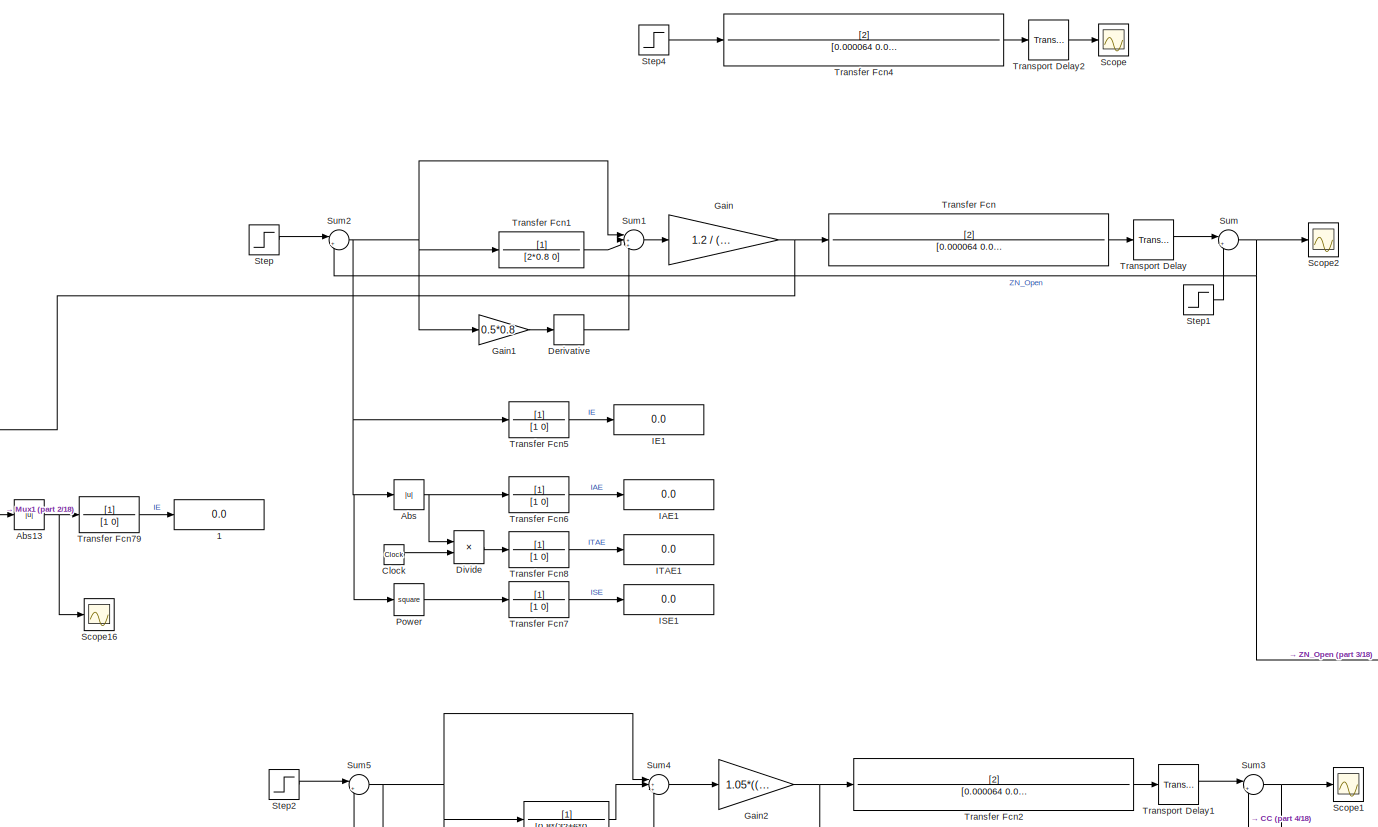
[diagram: root canvas - part 1/18, top center region]
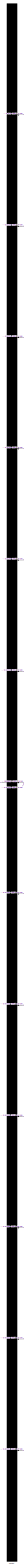
[diagram: root canvas - part 2/18, left side, full height]
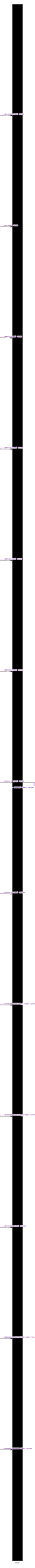
[diagram: root canvas - part 3/18, right side, full height]
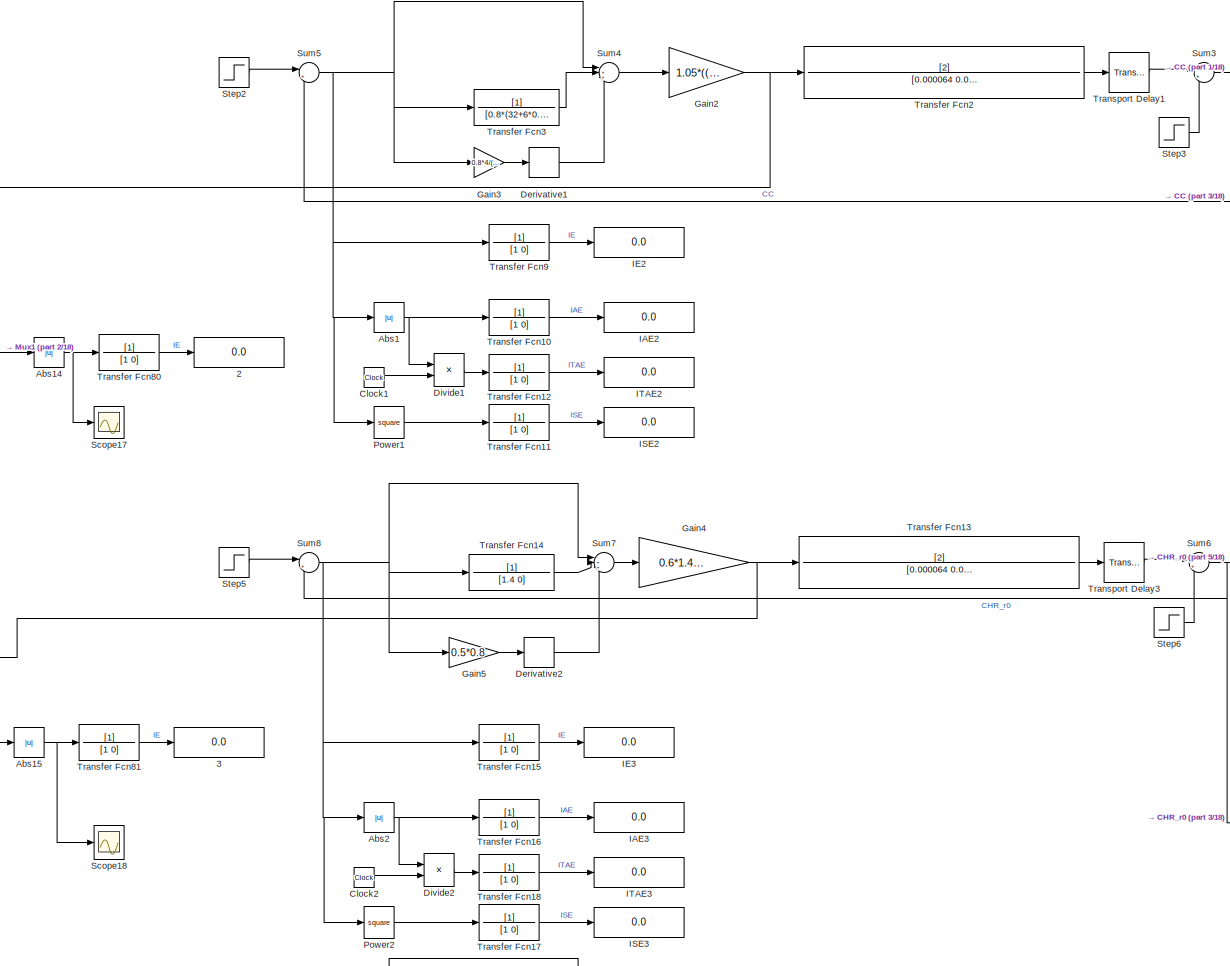
[diagram: root canvas - part 4/18, top center region]
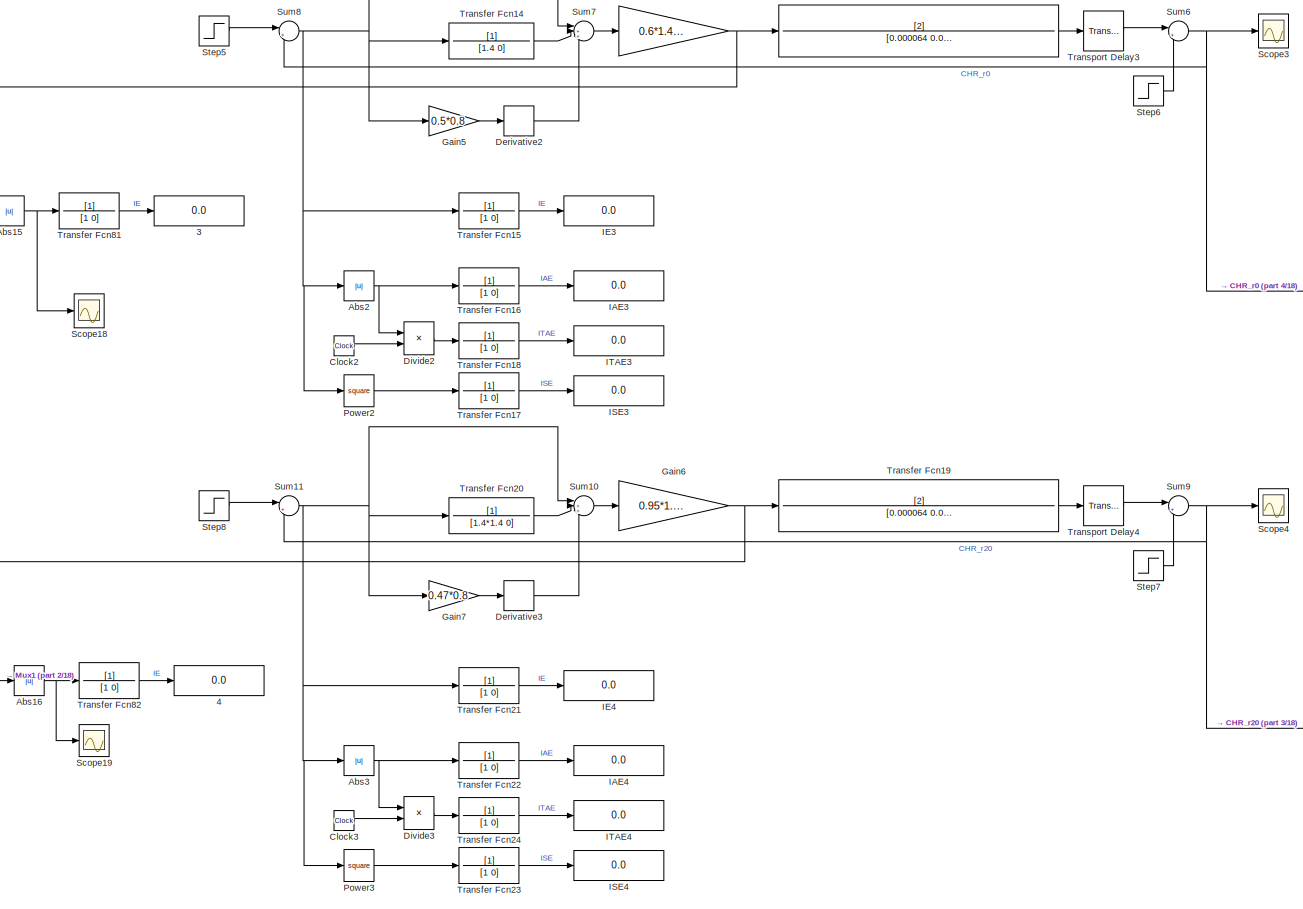
[diagram: root canvas - part 5/18, top center region]
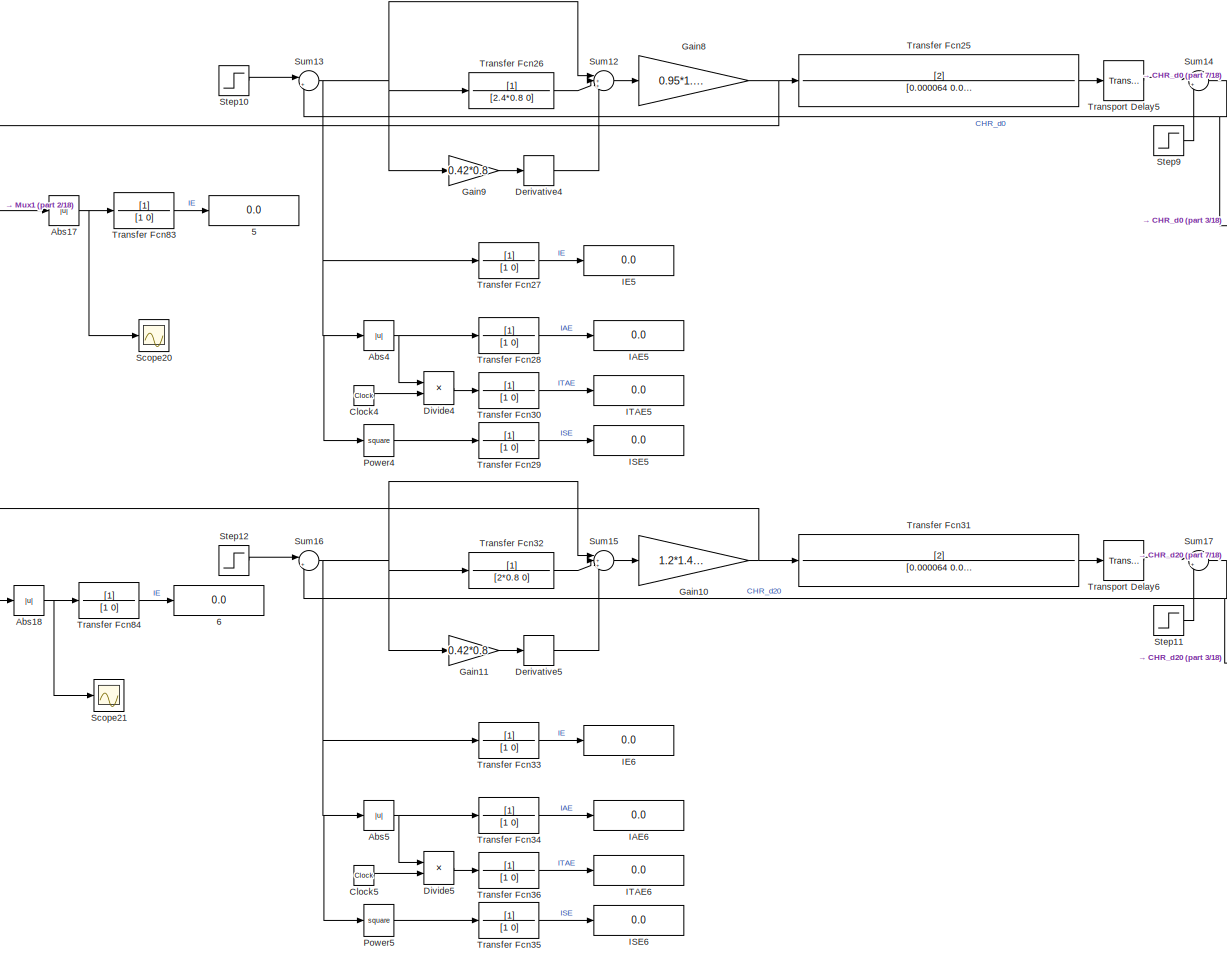
[diagram: root canvas - part 6/18, central region]
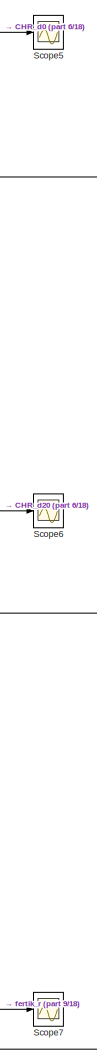
[diagram: root canvas - part 7/18, middle right region]
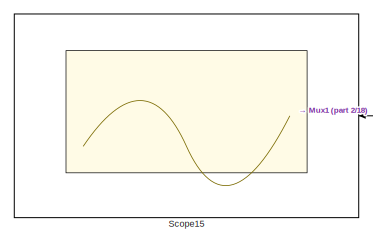
[diagram: root canvas - part 8/18, middle left region]
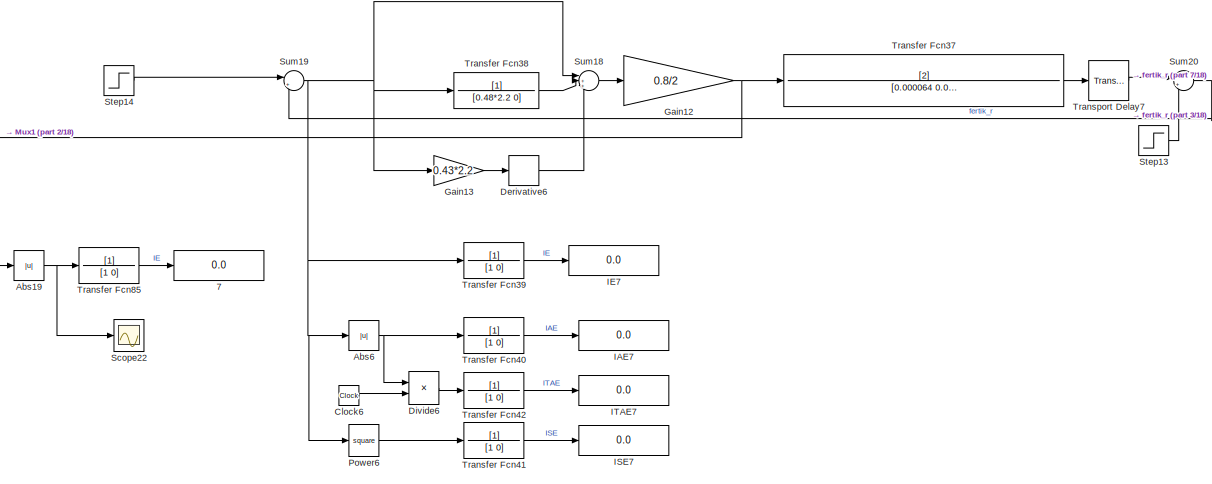
[diagram: root canvas - part 9/18, central region]
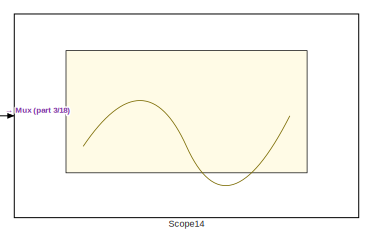
[diagram: root canvas - part 10/18, middle right region]
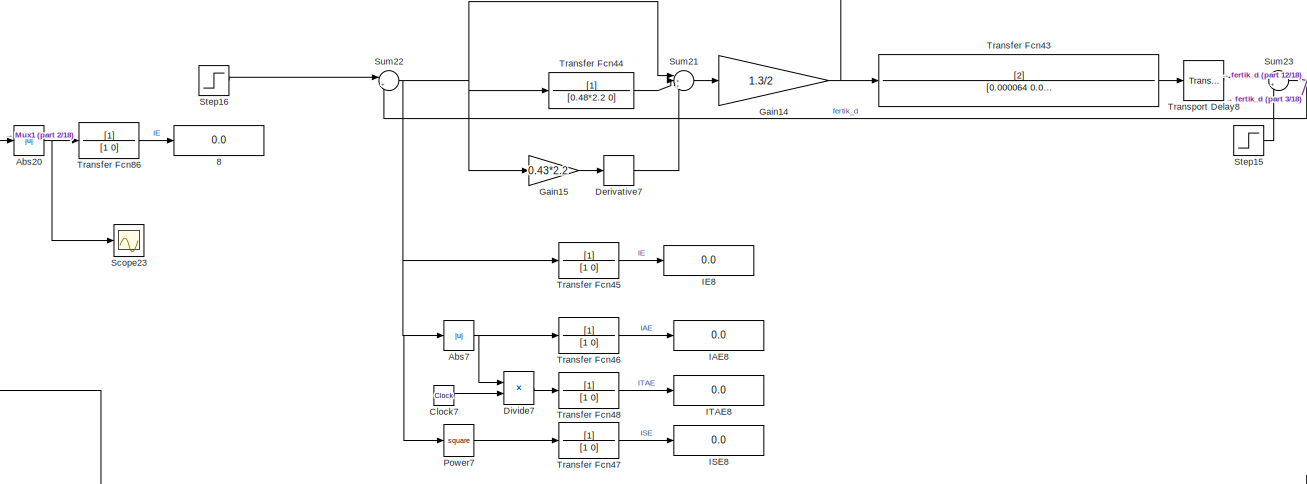
[diagram: root canvas - part 11/18, central region]
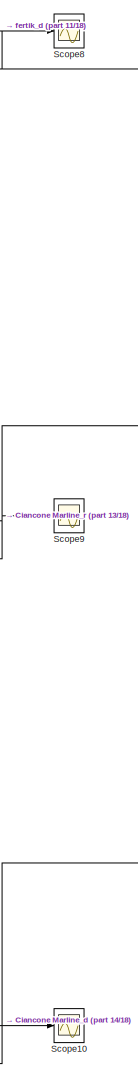
[diagram: root canvas - part 12/18, middle right region]
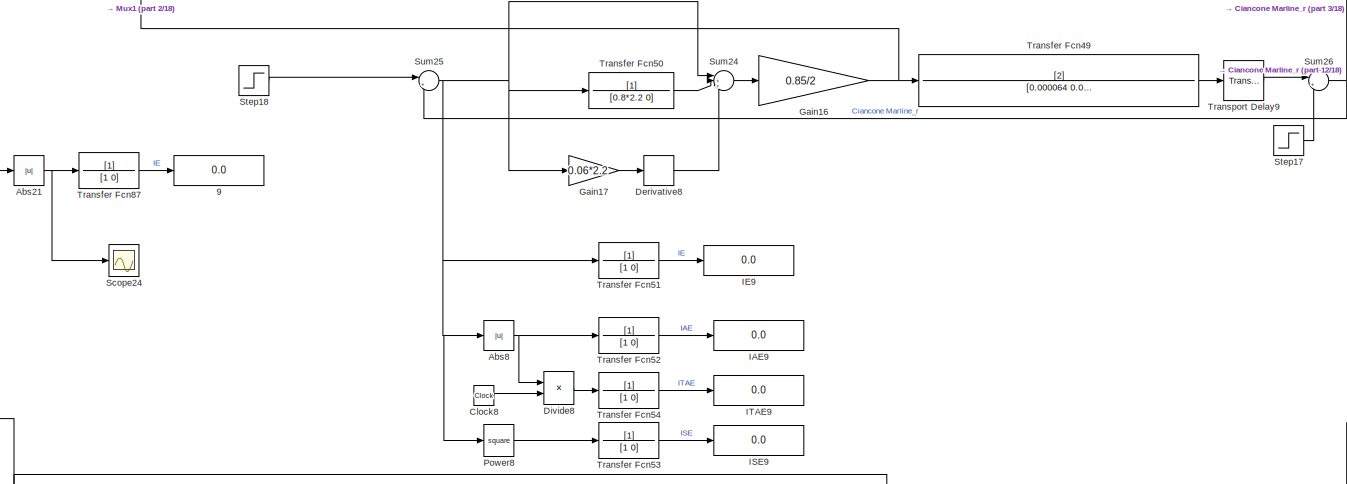
[diagram: root canvas - part 13/18, central region]
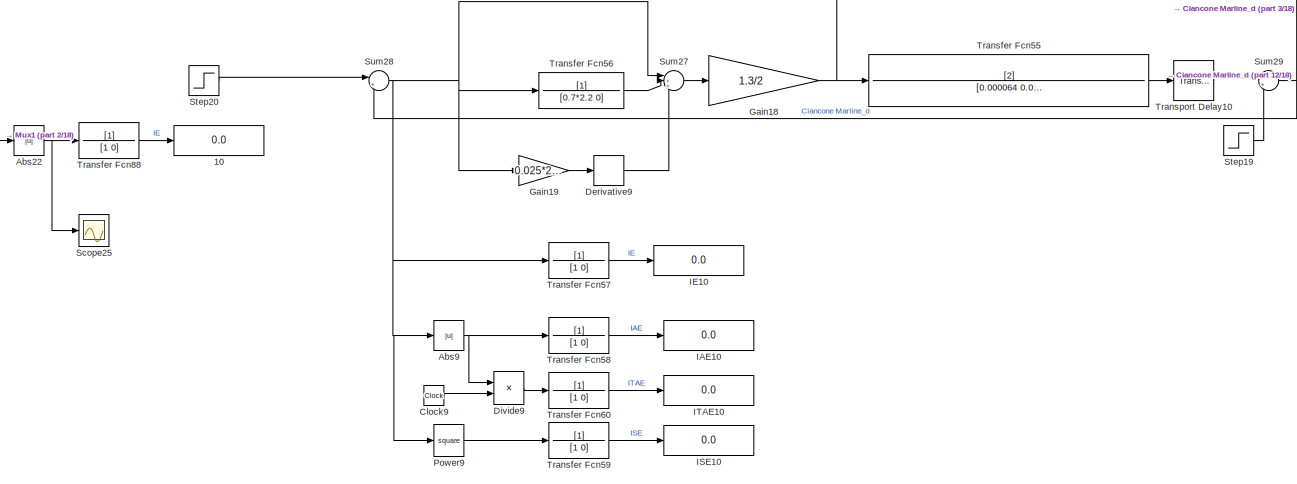
[diagram: root canvas - part 14/18, bottom center region]
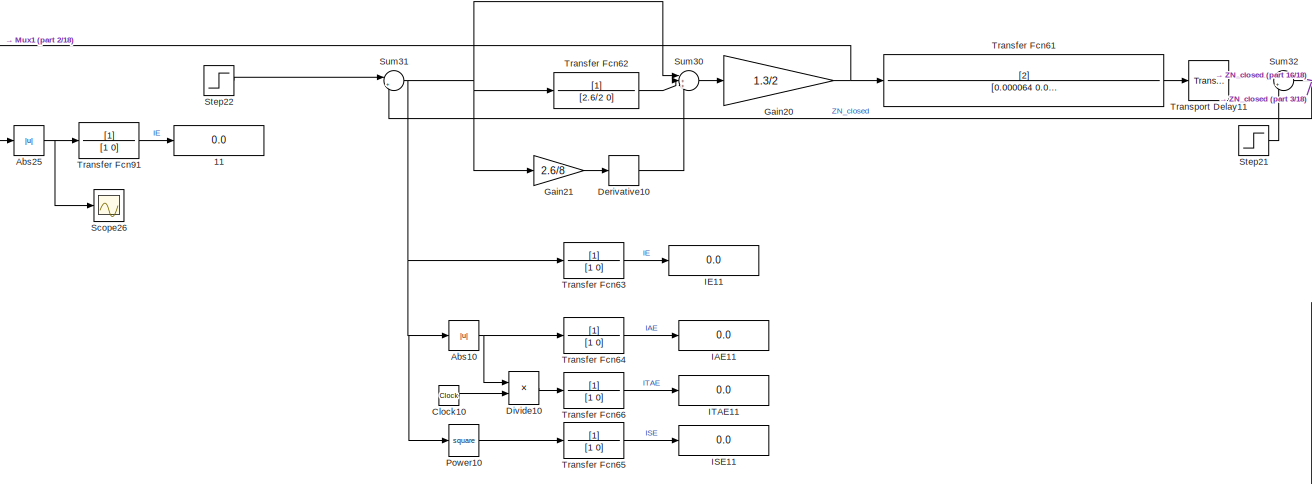
[diagram: root canvas - part 15/18, bottom center region]
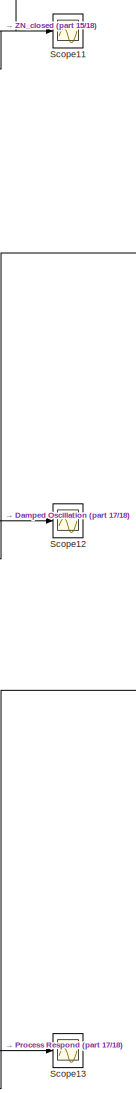
[diagram: root canvas - part 16/18, bottom right region]
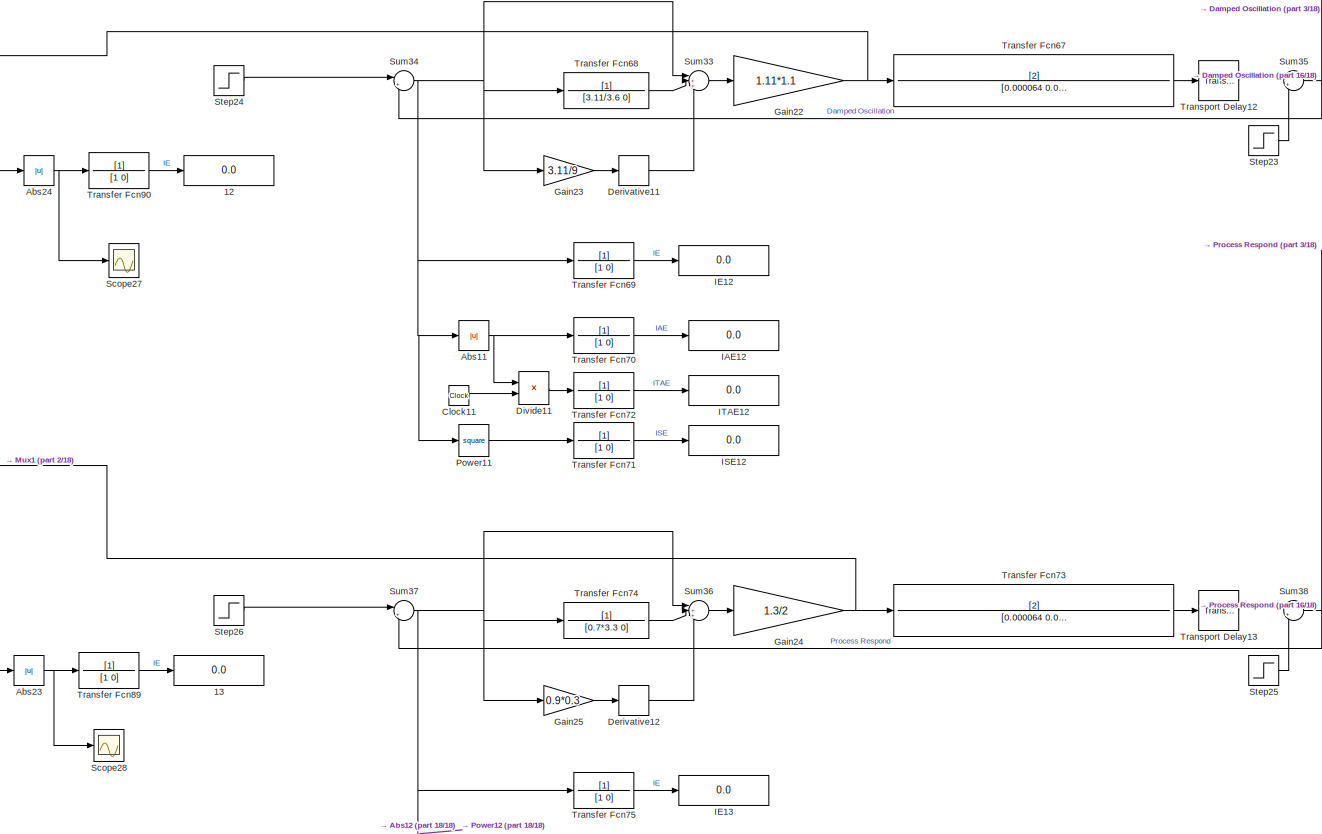
[diagram: root canvas - part 17/18, bottom center region]
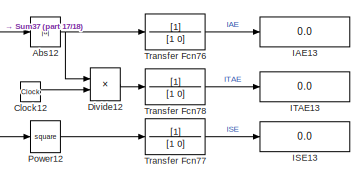
[diagram: root canvas - part 18/18, bottom center region]
MODEL slx_dedea97ae5a9
KIND model
CONFIG AbsTol = auto
CONFIG EnableMultiTasking = off
CONFIG FixedStep = auto
CONFIG MaxStep = auto
CONFIG MinStep = auto
CONFIG RelTol = 1e-3
CONFIG SampleTimeConstraint = Unconstrained
CONFIG SolverName = VariableStepAuto
CONFIG StartTime = 0.0
CONFIG StopTime = 30
BLOCK [Display] 1
  Decimation = 1
  Ports = [1]
BLOCK [Display] 10
  Decimation = 1
  Ports = [1]
BLOCK [Display] 11
  Decimation = 1
  Ports = [1]
BLOCK [Display] 12
  Decimation = 1
  Ports = [1]
BLOCK [Display] 13
  Decimation = 1
  Ports = [1]
BLOCK [Display] 2
  Decimation = 1
  Ports = [1]
BLOCK [Display] 3
  Decimation = 1
  Ports = [1]
BLOCK [Display] 4
  Decimation = 1
  Ports = [1]
BLOCK [Display] 5
  Decimation = 1
  Ports = [1]
BLOCK [Display] 6
  Decimation = 1
  Ports = [1]
BLOCK [Display] 7
  Decimation = 1
  Ports = [1]
BLOCK [Display] 8
  Decimation = 1
  Ports = [1]
BLOCK [Display] 9
  Decimation = 1
  Ports = [1]
BLOCK [Abs] Abs
  SaturateOnIntegerOverflow = off
BLOCK [Abs] Abs1
  SaturateOnIntegerOverflow = off
BLOCK [Abs] Abs10
  SaturateOnIntegerOverflow = off
BLOCK [Abs] Abs11
  SaturateOnIntegerOverflow = off
BLOCK [Abs] Abs12
  SaturateOnIntegerOverflow = off
BLOCK [Abs] Abs13
  SaturateOnIntegerOverflow = off
BLOCK [Abs] Abs14
  SaturateOnIntegerOverflow = off
BLOCK [Abs] Abs15
  SaturateOnIntegerOverflow = off
BLOCK [Abs] Abs16
  SaturateOnIntegerOverflow = off
BLOCK [Abs] Abs17
  SaturateOnIntegerOverflow = off
BLOCK [Abs] Abs18
  SaturateOnIntegerOverflow = off
BLOCK [Abs] Abs19
  SaturateOnIntegerOverflow = off
BLOCK [Abs] Abs2
  SaturateOnIntegerOverflow = off
BLOCK [Abs] Abs20
  SaturateOnIntegerOverflow = off
BLOCK [Abs] Abs21
  SaturateOnIntegerOverflow = off
BLOCK [Abs] Abs22
  SaturateOnIntegerOverflow = off
BLOCK [Abs] Abs23
  SaturateOnIntegerOverflow = off
BLOCK [Abs] Abs24
  SaturateOnIntegerOverflow = off
BLOCK [Abs] Abs25
  SaturateOnIntegerOverflow = off
BLOCK [Abs] Abs3
  SaturateOnIntegerOverflow = off
BLOCK [Abs] Abs4
  SaturateOnIntegerOverflow = off
BLOCK [Abs] Abs5
  SaturateOnIntegerOverflow = off
BLOCK [Abs] Abs6
  SaturateOnIntegerOverflow = off
BLOCK [Abs] Abs7
  SaturateOnIntegerOverflow = off
BLOCK [Abs] Abs8
  SaturateOnIntegerOverflow = off
BLOCK [Abs] Abs9
  SaturateOnIntegerOverflow = off
BLOCK [Clock] Clock
BLOCK [Clock] Clock1
BLOCK [Clock] Clock10
BLOCK [Clock] Clock11
BLOCK [Clock] Clock12
BLOCK [Clock] Clock2
BLOCK [Clock] Clock3
BLOCK [Clock] Clock4
BLOCK [Clock] Clock5
BLOCK [Clock] Clock6
BLOCK [Clock] Clock7
BLOCK [Clock] Clock8
BLOCK [Clock] Clock9
BLOCK [Derivative] Derivative
BLOCK [Derivative] Derivative1
BLOCK [Derivative] Derivative10
BLOCK [Derivative] Derivative11
BLOCK [Derivative] Derivative12
BLOCK [Derivative] Derivative2
BLOCK [Derivative] Derivative3
BLOCK [Derivative] Derivative4
BLOCK [Derivative] Derivative5
BLOCK [Derivative] Derivative6
BLOCK [Derivative] Derivative7
BLOCK [Derivative] Derivative8
BLOCK [Derivative] Derivative9
BLOCK [Product] Divide
  Inputs = **
  Ports = [2, 1]
BLOCK [Product] Divide1
  Inputs = **
  Ports = [2, 1]
BLOCK [Product] Divide10
  Inputs = **
  Ports = [2, 1]
BLOCK [Product] Divide11
  Inputs = **
  Ports = [2, 1]
BLOCK [Product] Divide12
  Inputs = **
  Ports = [2, 1]
BLOCK [Product] Divide2
  Inputs = **
  Ports = [2, 1]
BLOCK [Product] Divide3
  Inputs = **
  Ports = [2, 1]
BLOCK [Product] Divide4
  Inputs = **
  Ports = [2, 1]
BLOCK [Product] Divide5
  Inputs = **
  Ports = [2, 1]
BLOCK [Product] Divide6
  Inputs = **
  Ports = [2, 1]
BLOCK [Product] Divide7
  Inputs = **
  Ports = [2, 1]
BLOCK [Product] Divide8
  Inputs = **
  Ports = [2, 1]
BLOCK [Product] Divide9
  Inputs = **
  Ports = [2, 1]
BLOCK [Gain] Gain
  Gain = 1.2 / (2*0.8/1.4)
BLOCK [Gain] Gain1
  Gain = 0.5*0.8
BLOCK [Gain] Gain10
  Gain = 1.2*1.4 / (2*0.8)
BLOCK [Gain] Gain11
  Gain = 0.42*0.8
BLOCK [Gain] Gain12
  Gain = 0.8/2
BLOCK [Gain] Gain13
  Gain = 0.43*2.2
BLOCK [Gain] Gain14
  Gain = 1.3/2
BLOCK [Gain] Gain15
  Gain = 0.43*2.2
BLOCK [Gain] Gain16
  Gain = 0.85/2
BLOCK [Gain] Gain17
  Gain = 0.06*2.2
BLOCK [Gain] Gain18
  Gain = 1.3/2
BLOCK [Gain] Gain19
  Gain = 0.025*2.2
BLOCK [Gain] Gain2
  Gain = 1.05*((4/3) + 0.8/(4*1.05))/(2*0.8)
BLOCK [Gain] Gain20
  Gain = 1.3/2
BLOCK [Gain] Gain21
  Gain = 2.6/8
BLOCK [Gain] Gain22
  Gain = 1.11*1.1
BLOCK [Gain] Gain23
  Gain = 3.11/9
BLOCK [Gain] Gain24
  Gain = 1.3/2
BLOCK [Gain] Gain25
  Gain = 0.9*0.3
BLOCK [Gain] Gain3
  Gain = 0.8*4/(11+2*0.8/1.05)
BLOCK [Gain] Gain4
  Gain = 0.6*1.4 / (2*0.8)
BLOCK [Gain] Gain5
  Gain = 0.5*0.8
BLOCK [Gain] Gain6
  Gain = 0.95*1.4 / (2*0.8)
BLOCK [Gain] Gain7
  Gain = 0.47*0.8
BLOCK [Gain] Gain8
  Gain = 0.95*1.4 / (2*0.8)
BLOCK [Gain] Gain9
  Gain = 0.42*0.8
BLOCK [Display] IAE1
  Decimation = 1
  Ports = [1]
BLOCK [Display] IAE10
  Decimation = 1
  Ports = [1]
BLOCK [Display] IAE11
  Decimation = 1
  Ports = [1]
BLOCK [Display] IAE12
  Decimation = 1
  Ports = [1]
BLOCK [Display] IAE13
  Decimation = 1
  Ports = [1]
BLOCK [Display] IAE2
  Decimation = 1
  Ports = [1]
BLOCK [Display] IAE3
  Decimation = 1
  Ports = [1]
BLOCK [Display] IAE4
  Decimation = 1
  Ports = [1]
BLOCK [Display] IAE5
  Decimation = 1
  Ports = [1]
BLOCK [Display] IAE6
  Decimation = 1
  Ports = [1]
BLOCK [Display] IAE7
  Decimation = 1
  Ports = [1]
BLOCK [Display] IAE8
  Decimation = 1
  Ports = [1]
BLOCK [Display] IAE9
  Decimation = 1
  Ports = [1]
BLOCK [Display] IE1
  Decimation = 1
  Ports = [1]
BLOCK [Display] IE10
  Decimation = 1
  Ports = [1]
BLOCK [Display] IE11
  Decimation = 1
  Ports = [1]
BLOCK [Display] IE12
  Decimation = 1
  Ports = [1]
BLOCK [Display] IE13
  Decimation = 1
  Ports = [1]
BLOCK [Display] IE2
  Decimation = 1
  Ports = [1]
BLOCK [Display] IE3
  Decimation = 1
  Ports = [1]
BLOCK [Display] IE4
  Decimation = 1
  Ports = [1]
BLOCK [Display] IE5
  Decimation = 1
  Ports = [1]
BLOCK [Display] IE6
  Decimation = 1
  Ports = [1]
BLOCK [Display] IE7
  Decimation = 1
  Ports = [1]
BLOCK [Display] IE8
  Decimation = 1
  Ports = [1]
BLOCK [Display] IE9
  Decimation = 1
  Ports = [1]
BLOCK [Display] ISE1
  Decimation = 1
  Ports = [1]
BLOCK [Display] ISE10
  Decimation = 1
  Ports = [1]
BLOCK [Display] ISE11
  Decimation = 1
  Ports = [1]
BLOCK [Display] ISE12
  Decimation = 1
  Ports = [1]
BLOCK [Display] ISE13
  Decimation = 1
  Ports = [1]
BLOCK [Display] ISE2
  Decimation = 1
  Ports = [1]
BLOCK [Display] ISE3
  Decimation = 1
  Ports = [1]
BLOCK [Display] ISE4
  Decimation = 1
  Ports = [1]
BLOCK [Display] ISE5
  Decimation = 1
  Ports = [1]
BLOCK [Display] ISE6
  Decimation = 1
  Ports = [1]
BLOCK [Display] ISE7
  Decimation = 1
  Ports = [1]
BLOCK [Display] ISE8
  Decimation = 1
  Ports = [1]
BLOCK [Display] ISE9
  Decimation = 1
  Ports = [1]
BLOCK [Display] ITAE1
  Decimation = 1
  Ports = [1]
BLOCK [Display] ITAE10
  Decimation = 1
  Ports = [1]
BLOCK [Display] ITAE11
  Decimation = 1
  Ports = [1]
BLOCK [Display] ITAE12
  Decimation = 1
  Ports = [1]
BLOCK [Display] ITAE13
  Decimation = 1
  Ports = [1]
BLOCK [Display] ITAE2
  Decimation = 1
  Ports = [1]
BLOCK [Display] ITAE3
  Decimation = 1
  Ports = [1]
BLOCK [Display] ITAE4
  Decimation = 1
  Ports = [1]
BLOCK [Display] ITAE5
  Decimation = 1
  Ports = [1]
BLOCK [Display] ITAE6
  Decimation = 1
  Ports = [1]
BLOCK [Display] ITAE7
  Decimation = 1
  Ports = [1]
BLOCK [Display] ITAE8
  Decimation = 1
  Ports = [1]
BLOCK [Display] ITAE9
  Decimation = 1
  Ports = [1]
BLOCK [Mux] Mux
  DisplayOption = bar
  Inputs = 13
  Ports = [13, 1]
BLOCK [Mux] Mux1
  DisplayOption = bar
  Inputs = 13
  NameLocation = top
  Ports = [13, 1]
BLOCK [Math] Power
  Operator = square
  Ports = [1, 1]
BLOCK [Math] Power1
  Operator = square
  Ports = [1, 1]
BLOCK [Math] Power10
  Operator = square
  Ports = [1, 1]
BLOCK [Math] Power11
  Operator = square
  Ports = [1, 1]
BLOCK [Math] Power12
  Operator = square
  Ports = [1, 1]
BLOCK [Math] Power2
  Operator = square
  Ports = [1, 1]
BLOCK [Math] Power3
  Operator = square
  Ports = [1, 1]
BLOCK [Math] Power4
  Operator = square
  Ports = [1, 1]
BLOCK [Math] Power5
  Operator = square
  Ports = [1, 1]
BLOCK [Math] Power6
  Operator = square
  Ports = [1, 1]
BLOCK [Math] Power7
  Operator = square
  Ports = [1, 1]
BLOCK [Math] Power8
  Operator = square
  Ports = [1, 1]
BLOCK [Math] Power9
  Operator = square
  Ports = [1, 1]
BLOCK [Scope] Scope
  Floating = off
  NumInputPorts = 1
  Ports = [1]
  ScopeSpecificationString = Simulink.scopes.TimeScopeBlockCfg('CurrentConfiguration', extmgr.ConfigurationSet(extmgr.Configuration('Core','General UI',true,'FigureColor',[1 1 1]),extmgr.Configuration('Core','Source UI',true),extmgr.Configuration('Sources','WiredSimulink',true,'DataLoggingVariableName','ScopeData2'),extmgr.Configuration('Visuals','Time Domain',true,'SerializedDisplays',{struct('MinYLimReal','-0.25','MaxYLimRe...<+1731ch>
BLOCK [Scope] Scope1
  Floating = off
  NumInputPorts = 1
  Ports = [1]
  ScopeSpecificationString = Simulink.scopes.TimeScopeBlockCfg('CurrentConfiguration', extmgr.ConfigurationSet(extmgr.Configuration('Core','General UI',true,'FigureColor',[1 1 1]),extmgr.Configuration('Core','Source UI',true),extmgr.Configuration('Sources','WiredSimulink',true,'DataLoggingVariableName','ScopeData1'),extmgr.Configuration('Visuals','Time Domain',true,'SerializedDisplays',{struct('MinYLimReal','-0.18755','MaxYLi...<+1963ch>
BLOCK [Scope] Scope10
  Floating = off
  NumInputPorts = 1
  Ports = [1]
  ScopeSpecificationString = Simulink.scopes.TimeScopeBlockCfg('CurrentConfiguration', extmgr.ConfigurationSet(extmgr.Configuration('Core','General UI',true,'FigureColor',[1 1 1]),extmgr.Configuration('Core','Source UI',true),extmgr.Configuration('Sources','WiredSimulink',true,'DataLoggingVariableName','ScopeData4'),extmgr.Configuration('Visuals','Time Domain',true,'SerializedDisplays',{struct('MinYLimReal','-0.18747','MaxYLi...<+1973ch>
BLOCK [Scope] Scope11
  Floating = off
  NumInputPorts = 1
  Ports = [1]
  ScopeSpecificationString = Simulink.scopes.TimeScopeBlockCfg('CurrentConfiguration', extmgr.ConfigurationSet(extmgr.Configuration('Core','General UI',true,'FigureColor',[1 1 1]),extmgr.Configuration('Core','Source UI',true),extmgr.Configuration('Sources','WiredSimulink',true,'DataLoggingVariableName','ScopeData5'),extmgr.Configuration('Visuals','Time Domain',true,'SerializedDisplays',{struct('MinYLimReal','-0.1875','MaxYLim...<+1963ch>
BLOCK [Scope] Scope12
  Floating = off
  NumInputPorts = 1
  Ports = [1]
  ScopeSpecificationString = Simulink.scopes.TimeScopeBlockCfg('CurrentConfiguration', extmgr.ConfigurationSet(extmgr.Configuration('Core','General UI',true,'FigureColor',[1 1 1]),extmgr.Configuration('Core','Source UI',true),extmgr.Configuration('Sources','WiredSimulink',true,'DataLoggingVariableName','ScopeData6'),extmgr.Configuration('Visuals','Time Domain',true,'SerializedDisplays',{struct('MinYLimReal','-0.25789','MaxYLi...<+1981ch>
BLOCK [Scope] Scope13
  Floating = off
  NumInputPorts = 1
  Ports = [1]
  ScopeSpecificationString = Simulink.scopes.TimeScopeBlockCfg('CurrentConfiguration', extmgr.ConfigurationSet(extmgr.Configuration('Core','General UI',true,'FigureColor',[1 1 1]),extmgr.Configuration('Core','Source UI',true),extmgr.Configuration('Sources','WiredSimulink',true,'DataLoggingVariableName','ScopeData7'),extmgr.Configuration('Visuals','Time Domain',true,'SerializedDisplays',{struct('MinYLimReal','-0.18729','MaxYLi...<+1769ch>
BLOCK [Scope] Scope14
  Floating = off
  NumInputPorts = 1
  Ports = [1]
  ScopeSpecificationString = Simulink.scopes.TimeScopeBlockCfg('CurrentConfiguration', extmgr.ConfigurationSet(extmgr.Configuration('Core','General UI',true,'FigureColor',[1 1 1]),extmgr.Configuration('Core','Source UI',true),extmgr.Configuration('Sources','WiredSimulink',true,'DataLoggingVariableName','ScopeData8'),extmgr.Configuration('Visuals','Time Domain',true,'SerializedDisplays',{struct('MinYLimReal','-0.25789','MaxYLi...<+1595ch>
BLOCK [Scope] Scope15
  Floating = off
  NameLocation = top
  NumInputPorts = 1
  Ports = [1]
  ScopeSpecificationString = Simulink.scopes.TimeScopeBlockCfg('CurrentConfiguration', extmgr.ConfigurationSet(extmgr.Configuration('Core','General UI',true,'FigureColor',[1 1 1]),extmgr.Configuration('Core','Source UI',true),extmgr.Configuration('Sources','WiredSimulink',true,'DataLoggingVariableName','ScopeData9'),extmgr.Configuration('Visuals','Time Domain',true,'SerializedDisplays',{struct('MinYLimReal','-3042403649637.72...<+1623ch>
BLOCK [Scope] Scope16
  Floating = off
  NumInputPorts = 1
  Ports = [1]
  ScopeSpecificationString = Simulink.scopes.TimeScopeBlockCfg('CurrentConfiguration', extmgr.ConfigurationSet(extmgr.Configuration('Core','General UI',true),extmgr.Configuration('Core','Source UI',true),extmgr.Configuration('Sources','WiredSimulink',true,'DataLoggingVariableName','ScopeData10'),extmgr.Configuration('Visuals','Time Domain',true,'SerializedDisplays',{struct('MinYLimReal','-230897441832.96228','MaxYLimReal','20...<+1682ch>
BLOCK [Scope] Scope17
  Floating = off
  NumInputPorts = 1
  Ports = [1]
  ScopeSpecificationString = Simulink.scopes.TimeScopeBlockCfg('CurrentConfiguration', extmgr.ConfigurationSet(extmgr.Configuration('Core','General UI',true),extmgr.Configuration('Core','Source UI',true),extmgr.Configuration('Sources','WiredSimulink',true,'DataLoggingVariableName','ScopeData11'),extmgr.Configuration('Visuals','Time Domain',true,'SerializedDisplays',{struct('MinYLimReal','-140469926590.39389','MaxYLimReal','12...<+1973ch>
BLOCK [Scope] Scope18
  Floating = off
  NumInputPorts = 1
  Ports = [1]
  ScopeSpecificationString = Simulink.scopes.TimeScopeBlockCfg('CurrentConfiguration', extmgr.ConfigurationSet(extmgr.Configuration('Core','General UI',true),extmgr.Configuration('Core','Source UI',true),extmgr.Configuration('Sources','WiredSimulink',true,'DataLoggingVariableName','ScopeData12'),extmgr.Configuration('Visuals','Time Domain',true,'SerializedDisplays',{struct('MinYLimReal','-115448720916.31834','MaxYLimReal','10...<+2019ch>
BLOCK [Scope] Scope19
  Floating = off
  NumInputPorts = 1
  Ports = [1]
  ScopeSpecificationString = Simulink.scopes.TimeScopeBlockCfg('CurrentConfiguration', extmgr.ConfigurationSet(extmgr.Configuration('Core','General UI',true),extmgr.Configuration('Core','Source UI',true),extmgr.Configuration('Sources','WiredSimulink',true,'DataLoggingVariableName','ScopeData13'),extmgr.Configuration('Visuals','Time Domain',true,'SerializedDisplays',{struct('MinYLimReal','-171826179630.68387','MaxYLimReal','15...<+1682ch>
BLOCK [Scope] Scope2
  Floating = off
  NumInputPorts = 1
  Ports = [1]
  ScopeSpecificationString = Simulink.scopes.TimeScopeBlockCfg('CurrentConfiguration', extmgr.ConfigurationSet(extmgr.Configuration('Core','General UI',true,'FigureColor',[1 1 1]),extmgr.Configuration('Core','Source UI',true),extmgr.Configuration('Sources','WiredSimulink',true),extmgr.Configuration('Visuals','Time Domain',true,'SerializedDisplays',{struct('MinYLimReal','-0.18733','MaxYLimReal','1.68593','YLabelReal','','MinYL...<+1923ch>
BLOCK [Scope] Scope20
  Floating = off
  NumInputPorts = 1
  Ports = [1]
  ScopeSpecificationString = Simulink.scopes.TimeScopeBlockCfg('CurrentConfiguration', extmgr.ConfigurationSet(extmgr.Configuration('Core','General UI',true),extmgr.Configuration('Core','Source UI',true),extmgr.Configuration('Sources','WiredSimulink',true,'DataLoggingVariableName','ScopeData14'),extmgr.Configuration('Visuals','Time Domain',true,'SerializedDisplays',{struct('MinYLimReal','-153546798818.90778','MaxYLimReal','13...<+1682ch>
BLOCK [Scope] Scope21
  Floating = off
  NumInputPorts = 1
  Ports = [1]
  ScopeSpecificationString = Simulink.scopes.TimeScopeBlockCfg('CurrentConfiguration', extmgr.ConfigurationSet(extmgr.Configuration('Core','General UI',true),extmgr.Configuration('Core','Source UI',true),extmgr.Configuration('Sources','WiredSimulink',true,'DataLoggingVariableName','ScopeData15'),extmgr.Configuration('Visuals','Time Domain',true,'SerializedDisplays',{struct('MinYLimReal','-193953851139.68961','MaxYLimReal','17...<+1682ch>
BLOCK [Scope] Scope22
  Floating = off
  NumInputPorts = 1
  Ports = [1]
  ScopeSpecificationString = Simulink.scopes.TimeScopeBlockCfg('CurrentConfiguration', extmgr.ConfigurationSet(extmgr.Configuration('Core','General UI',true),extmgr.Configuration('Core','Source UI',true),extmgr.Configuration('Sources','WiredSimulink',true,'DataLoggingVariableName','ScopeData16'),extmgr.Configuration('Visuals','Time Domain',true,'SerializedDisplays',{struct('MinYLimReal','-208027599974.97903','MaxYLimReal','18...<+1678ch>
BLOCK [Scope] Scope23
  Floating = off
  NumInputPorts = 1
  Ports = [1]
  ScopeSpecificationString = Simulink.scopes.TimeScopeBlockCfg('CurrentConfiguration', extmgr.ConfigurationSet(extmgr.Configuration('Core','General UI',true),extmgr.Configuration('Core','Source UI',true),extmgr.Configuration('Sources','WiredSimulink',true,'DataLoggingVariableName','ScopeData17'),extmgr.Configuration('Visuals','Time Domain',true,'SerializedDisplays',{struct('MinYLimReal','-338044849959.71698','MaxYLimReal','30...<+1682ch>
BLOCK [Scope] Scope24
  Floating = off
  NumInputPorts = 1
  Ports = [1]
  ScopeSpecificationString = Simulink.scopes.TimeScopeBlockCfg('CurrentConfiguration', extmgr.ConfigurationSet(extmgr.Configuration('Core','General UI',true),extmgr.Configuration('Core','Source UI',true),extmgr.Configuration('Sources','WiredSimulink',true,'DataLoggingVariableName','ScopeData18'),extmgr.Configuration('Visuals','Time Domain',true,'SerializedDisplays',{struct('MinYLimReal','-30841301158.84925','MaxYLimReal','277...<+1674ch>
BLOCK [Scope] Scope25
  Floating = off
  NumInputPorts = 1
  Ports = [1]
  ScopeSpecificationString = Simulink.scopes.TimeScopeBlockCfg('CurrentConfiguration', extmgr.ConfigurationSet(extmgr.Configuration('Core','General UI',true),extmgr.Configuration('Core','Source UI',true),extmgr.Configuration('Sources','WiredSimulink',true,'DataLoggingVariableName','ScopeData19'),extmgr.Configuration('Visuals','Time Domain',true,'SerializedDisplays',{struct('MinYLimReal','-19653770346.44152','MaxYLimReal','176...<+1674ch>
BLOCK [Scope] Scope26
  Floating = off
  NumInputPorts = 1
  Ports = [1]
  ScopeSpecificationString = Simulink.scopes.TimeScopeBlockCfg('CurrentConfiguration', extmgr.ConfigurationSet(extmgr.Configuration('Core','General UI',true),extmgr.Configuration('Core','Source UI',true),extmgr.Configuration('Sources','WiredSimulink',true,'DataLoggingVariableName','ScopeData20'),extmgr.Configuration('Visuals','Time Domain',true,'SerializedDisplays',{struct('MinYLimReal','-116135915683.80235','MaxYLimReal','10...<+1682ch>
BLOCK [Scope] Scope27
  Floating = off
  NumInputPorts = 1
  Ports = [1]
  ScopeSpecificationString = Simulink.scopes.TimeScopeBlockCfg('CurrentConfiguration', extmgr.ConfigurationSet(extmgr.Configuration('Core','General UI',true),extmgr.Configuration('Core','Source UI',true),extmgr.Configuration('Sources','WiredSimulink',true,'DataLoggingVariableName','ScopeData21'),extmgr.Configuration('Visuals','Time Domain',true,'SerializedDisplays',{struct('MinYLimReal','-231954805515.0174','MaxYLimReal','208...<+1680ch>
BLOCK [Scope] Scope28
  Floating = off
  NumInputPorts = 1
  Ports = [1]
  ScopeSpecificationString = Simulink.scopes.TimeScopeBlockCfg('CurrentConfiguration', extmgr.ConfigurationSet(extmgr.Configuration('Core','General UI',true),extmgr.Configuration('Core','Source UI',true),extmgr.Configuration('Sources','WiredSimulink',true,'DataLoggingVariableName','ScopeData22'),extmgr.Configuration('Visuals','Time Domain',true,'SerializedDisplays',{struct('MinYLimReal','-96482145337.22722','MaxYLimReal','868...<+1674ch>
BLOCK [Scope] Scope3
  Floating = off
  NumInputPorts = 1
  Ports = [1]
  ScopeSpecificationString = Simulink.scopes.TimeScopeBlockCfg('CurrentConfiguration', extmgr.ConfigurationSet(extmgr.Configuration('Core','General UI',true,'FigureColor',[1 1 1]),extmgr.Configuration('Core','Source UI',true),extmgr.Configuration('Sources','WiredSimulink',true,'DataLoggingVariableName','ScopeData3'),extmgr.Configuration('Visuals','Time Domain',true,'SerializedDisplays',{struct('MinYLimReal','-0.1875','MaxYLim...<+1959ch>
BLOCK [Scope] Scope4
  Floating = off
  NumInputPorts = 1
  Ports = [1]
  ScopeSpecificationString = Simulink.scopes.TimeScopeBlockCfg('CurrentConfiguration', extmgr.ConfigurationSet(extmgr.Configuration('Core','General UI',true,'FigureColor',[1 1 1]),extmgr.Configuration('Core','Source UI',true),extmgr.Configuration('Sources','WiredSimulink',true,'DataLoggingVariableName','ScopeData4'),extmgr.Configuration('Visuals','Time Domain',true,'SerializedDisplays',{struct('MinYLimReal','-0.1875','MaxYLim...<+1961ch>
BLOCK [Scope] Scope5
  Floating = off
  NumInputPorts = 1
  Ports = [1]
  ScopeSpecificationString = Simulink.scopes.TimeScopeBlockCfg('CurrentConfiguration', extmgr.ConfigurationSet(extmgr.Configuration('Core','General UI',true,'FigureColor',[1 1 1]),extmgr.Configuration('Core','Source UI',true),extmgr.Configuration('Sources','WiredSimulink',true,'DataLoggingVariableName','ScopeData5'),extmgr.Configuration('Visuals','Time Domain',true,'SerializedDisplays',{struct('MinYLimReal','-0.1875','MaxYLim...<+1954ch>
BLOCK [Scope] Scope6
  Floating = off
  NumInputPorts = 1
  Ports = [1]
  ScopeSpecificationString = Simulink.scopes.TimeScopeBlockCfg('CurrentConfiguration', extmgr.ConfigurationSet(extmgr.Configuration('Core','General UI',true,'FigureColor',[1 1 1]),extmgr.Configuration('Core','Source UI',true),extmgr.Configuration('Sources','WiredSimulink',true,'DataLoggingVariableName','ScopeData6'),extmgr.Configuration('Visuals','Time Domain',true,'SerializedDisplays',{struct('MinYLimReal','-0.18766','MaxYLi...<+1979ch>
BLOCK [Scope] Scope7
  Floating = off
  NumInputPorts = 1
  Ports = [1]
  ScopeSpecificationString = Simulink.scopes.TimeScopeBlockCfg('CurrentConfiguration', extmgr.ConfigurationSet(extmgr.Configuration('Core','General UI',true,'FigureColor',[1 1 1]),extmgr.Configuration('Core','Source UI',true),extmgr.Configuration('Sources','WiredSimulink',true,'DataLoggingVariableName','ScopeData1'),extmgr.Configuration('Visuals','Time Domain',true,'SerializedDisplays',{struct('MinYLimReal','-0.18754','MaxYLi...<+1964ch>
BLOCK [Scope] Scope8
  Floating = off
  NumInputPorts = 1
  Ports = [1]
  ScopeSpecificationString = Simulink.scopes.TimeScopeBlockCfg('CurrentConfiguration', extmgr.ConfigurationSet(extmgr.Configuration('Core','General UI',true,'FigureColor',[1 1 1]),extmgr.Configuration('Core','Source UI',true),extmgr.Configuration('Sources','WiredSimulink',true,'DataLoggingVariableName','ScopeData2'),extmgr.Configuration('Visuals','Time Domain',true,'SerializedDisplays',{struct('MinYLimReal','-0.19329','MaxYLi...<+1962ch>
BLOCK [Scope] Scope9
  Floating = off
  NumInputPorts = 1
  Ports = [1]
  ScopeSpecificationString = Simulink.scopes.TimeScopeBlockCfg('CurrentConfiguration', extmgr.ConfigurationSet(extmgr.Configuration('Core','General UI',true,'FigureColor',[1 1 1]),extmgr.Configuration('Core','Source UI',true),extmgr.Configuration('Sources','WiredSimulink',true,'DataLoggingVariableName','ScopeData3'),extmgr.Configuration('Visuals','Time Domain',true,'SerializedDisplays',{struct('MinYLimReal','-0.18736','MaxYLi...<+1769ch>
BLOCK [Step] Step
  SampleTime = 0
  Time = 0
BLOCK [Step] Step1
  After = 0.5
  SampleTime = 0
  Time = 15
BLOCK [Step] Step10
  SampleTime = 0
  Time = 0
BLOCK [Step] Step11
  After = 0.5
  SampleTime = 0
  Time = 15
BLOCK [Step] Step12
  SampleTime = 0
  Time = 0
BLOCK [Step] Step13
  After = 0.5
  SampleTime = 0
  Time = 15
BLOCK [Step] Step14
  SampleTime = 0
  Time = 0
BLOCK [Step] Step15
  After = 0.5
  SampleTime = 0
  Time = 15
BLOCK [Step] Step16
  SampleTime = 0
  Time = 0
BLOCK [Step] Step17
  After = 0.5
  SampleTime = 0
  Time = 15
BLOCK [Step] Step18
  SampleTime = 0
  Time = 0
BLOCK [Step] Step19
  After = 0.5
  SampleTime = 0
  Time = 15
BLOCK [Step] Step2
  SampleTime = 0
  Time = 0
BLOCK [Step] Step20
  SampleTime = 0
  Time = 0
BLOCK [Step] Step21
  After = 0.5
  SampleTime = 0
  Time = 15
BLOCK [Step] Step22
  SampleTime = 0
  Time = 0
BLOCK [Step] Step23
  After = 0.5
  SampleTime = 0
  Time = 15
BLOCK [Step] Step24
  SampleTime = 0
  Time = 0
BLOCK [Step] Step25
  After = 0.5
  SampleTime = 0
  Time = 15
BLOCK [Step] Step26
  SampleTime = 0
  Time = 0
BLOCK [Step] Step3
  After = 0.5
  SampleTime = 0
  Time = 15
BLOCK [Step] Step4
  SampleTime = 0
  Time = 0
BLOCK [Step] Step5
  SampleTime = 0
  Time = 0
BLOCK [Step] Step6
  After = 0.5
  SampleTime = 0
  Time = 15
BLOCK [Step] Step7
  After = 0.5
  SampleTime = 0
  Time = 15
BLOCK [Step] Step8
  SampleTime = 0
  Time = 0
BLOCK [Step] Step9
  After = 0.5
  SampleTime = 0
  Time = 15
BLOCK [Sum] Sum
  Inputs = |++
  Ports = [2, 1]
BLOCK [Sum] Sum1
  Inputs = |+++
  Ports = [3, 1]
BLOCK [Sum] Sum10
  Inputs = |+++
  Ports = [3, 1]
BLOCK [Sum] Sum11
  Inputs = |+-
  Ports = [2, 1]
BLOCK [Sum] Sum12
  Inputs = |+++
  Ports = [3, 1]
BLOCK [Sum] Sum13
  Inputs = |+-
  Ports = [2, 1]
BLOCK [Sum] Sum14
  Inputs = |++
  Ports = [2, 1]
BLOCK [Sum] Sum15
  Inputs = |+++
  Ports = [3, 1]
BLOCK [Sum] Sum16
  Inputs = |+-
  Ports = [2, 1]
BLOCK [Sum] Sum17
  Inputs = |++
  Ports = [2, 1]
BLOCK [Sum] Sum18
  Inputs = |+++
  Ports = [3, 1]
BLOCK [Sum] Sum19
  Inputs = |+-
  Ports = [2, 1]
BLOCK [Sum] Sum2
  Inputs = |+-
  Ports = [2, 1]
BLOCK [Sum] Sum20
  Inputs = |++
  Ports = [2, 1]
BLOCK [Sum] Sum21
  Inputs = |+++
  Ports = [3, 1]
BLOCK [Sum] Sum22
  Inputs = |+-
  Ports = [2, 1]
BLOCK [Sum] Sum23
  Inputs = |++
  Ports = [2, 1]
BLOCK [Sum] Sum24
  Inputs = |+++
  Ports = [3, 1]
BLOCK [Sum] Sum25
  Inputs = |+-
  Ports = [2, 1]
BLOCK [Sum] Sum26
  Inputs = |++
  Ports = [2, 1]
BLOCK [Sum] Sum27
  Inputs = |+++
  Ports = [3, 1]
BLOCK [Sum] Sum28
  Inputs = |+-
  Ports = [2, 1]
BLOCK [Sum] Sum29
  Inputs = |++
  Ports = [2, 1]
BLOCK [Sum] Sum3
  Inputs = |++
  Ports = [2, 1]
BLOCK [Sum] Sum30
  Inputs = |+++
  Ports = [3, 1]
BLOCK [Sum] Sum31
  Inputs = |+-
  Ports = [2, 1]
BLOCK [Sum] Sum32
  Inputs = |++
  Ports = [2, 1]
BLOCK [Sum] Sum33
  Inputs = |+++
  Ports = [3, 1]
BLOCK [Sum] Sum34
  Inputs = |+-
  Ports = [2, 1]
BLOCK [Sum] Sum35
  Inputs = |++
  Ports = [2, 1]
BLOCK [Sum] Sum36
  Inputs = |+++
  Ports = [3, 1]
BLOCK [Sum] Sum37
  Inputs = |+-
  Ports = [2, 1]
BLOCK [Sum] Sum38
  Inputs = |++
  Ports = [2, 1]
BLOCK [Sum] Sum4
  Inputs = |+++
  Ports = [3, 1]
BLOCK [Sum] Sum5
  Inputs = |+-
  Ports = [2, 1]
BLOCK [Sum] Sum6
  Inputs = |++
  Ports = [2, 1]
BLOCK [Sum] Sum7
  Inputs = |+++
  Ports = [3, 1]
BLOCK [Sum] Sum8
  Inputs = |+-
  Ports = [2, 1]
BLOCK [Sum] Sum9
  Inputs = |++
  Ports = [2, 1]
BLOCK [TransferFcn] Transfer Fcn
  Denominator = [0.000064 0.009984 0.25792 1.248 1]
  Numerator = [2]
BLOCK [TransferFcn] Transfer Fcn1
  Denominator = [2*0.8 0]
BLOCK [TransferFcn] Transfer Fcn10
  Denominator = [1 0]
BLOCK [TransferFcn] Transfer Fcn11
  Denominator = [1 0]
BLOCK [TransferFcn] Transfer Fcn12
  Denominator = [1 0]
BLOCK [TransferFcn] Transfer Fcn13
  Denominator = [0.000064 0.009984 0.25792 1.248 1]
  Numerator = [2]
BLOCK [TransferFcn] Transfer Fcn14
  Denominator = [1.4 0]
BLOCK [TransferFcn] Transfer Fcn15
  Denominator = [1 0]
BLOCK [TransferFcn] Transfer Fcn16
  Denominator = [1 0]
BLOCK [TransferFcn] Transfer Fcn17
  Denominator = [1 0]
BLOCK [TransferFcn] Transfer Fcn18
  Denominator = [1 0]
BLOCK [TransferFcn] Transfer Fcn19
  Denominator = [0.000064 0.009984 0.25792 1.248 1]
  Numerator = [2]
BLOCK [TransferFcn] Transfer Fcn2
  Denominator = [0.000064 0.009984 0.25792 1.248 1]
  Numerator = [2]
BLOCK [TransferFcn] Transfer Fcn20
  Denominator = [1.4*1.4 0]
BLOCK [TransferFcn] Transfer Fcn21
  Denominator = [1 0]
BLOCK [TransferFcn] Transfer Fcn22
  Denominator = [1 0]
BLOCK [TransferFcn] Transfer Fcn23
  Denominator = [1 0]
BLOCK [TransferFcn] Transfer Fcn24
  Denominator = [1 0]
BLOCK [TransferFcn] Transfer Fcn25
  Denominator = [0.000064 0.009984 0.25792 1.248 1]
  Numerator = [2]
BLOCK [TransferFcn] Transfer Fcn26
  Denominator = [2.4*0.8 0]
BLOCK [TransferFcn] Transfer Fcn27
  Denominator = [1 0]
BLOCK [TransferFcn] Transfer Fcn28
  Denominator = [1 0]
BLOCK [TransferFcn] Transfer Fcn29
  Denominator = [1 0]
BLOCK [TransferFcn] Transfer Fcn3
  Denominator = [0.8*(32+6*0.8/1.05)/(13+8*0.8/1.05) 0]
BLOCK [TransferFcn] Transfer Fcn30
  Denominator = [1 0]
BLOCK [TransferFcn] Transfer Fcn31
  Denominator = [0.000064 0.009984 0.25792 1.248 1]
  Numerator = [2]
BLOCK [TransferFcn] Transfer Fcn32
  Denominator = [2*0.8 0]
BLOCK [TransferFcn] Transfer Fcn33
  Denominator = [1 0]
BLOCK [TransferFcn] Transfer Fcn34
  Denominator = [1 0]
BLOCK [TransferFcn] Transfer Fcn35
  Denominator = [1 0]
BLOCK [TransferFcn] Transfer Fcn36
  Denominator = [1 0]
BLOCK [TransferFcn] Transfer Fcn37
  Denominator = [0.000064 0.009984 0.25792 1.248 1]
  Numerator = [2]
BLOCK [TransferFcn] Transfer Fcn38
  Denominator = [0.48*2.2 0]
BLOCK [TransferFcn] Transfer Fcn39
  Denominator = [1 0]
BLOCK [TransferFcn] Transfer Fcn4
  Denominator = [0.000064 0.009984 0.25792 1.248 1]
  Numerator = [2]
BLOCK [TransferFcn] Transfer Fcn40
  Denominator = [1 0]
BLOCK [TransferFcn] Transfer Fcn41
  Denominator = [1 0]
BLOCK [TransferFcn] Transfer Fcn42
  Denominator = [1 0]
BLOCK [TransferFcn] Transfer Fcn43
  Denominator = [0.000064 0.009984 0.25792 1.248 1]
  Numerator = [2]
BLOCK [TransferFcn] Transfer Fcn44
  Denominator = [0.48*2.2 0]
BLOCK [TransferFcn] Transfer Fcn45
  Denominator = [1 0]
BLOCK [TransferFcn] Transfer Fcn46
  Denominator = [1 0]
BLOCK [TransferFcn] Transfer Fcn47
  Denominator = [1 0]
BLOCK [TransferFcn] Transfer Fcn48
  Denominator = [1 0]
BLOCK [TransferFcn] Transfer Fcn49
  Denominator = [0.000064 0.009984 0.25792 1.248 1]
  Numerator = [2]
BLOCK [TransferFcn] Transfer Fcn5
  Denominator = [1 0]
BLOCK [TransferFcn] Transfer Fcn50
  Denominator = [0.8*2.2 0]
BLOCK [TransferFcn] Transfer Fcn51
  Denominator = [1 0]
BLOCK [TransferFcn] Transfer Fcn52
  Denominator = [1 0]
BLOCK [TransferFcn] Transfer Fcn53
  Denominator = [1 0]
BLOCK [TransferFcn] Transfer Fcn54
  Denominator = [1 0]
BLOCK [TransferFcn] Transfer Fcn55
  Denominator = [0.000064 0.009984 0.25792 1.248 1]
  Numerator = [2]
BLOCK [TransferFcn] Transfer Fcn56
  Denominator = [0.7*2.2 0]
BLOCK [TransferFcn] Transfer Fcn57
  Denominator = [1 0]
BLOCK [TransferFcn] Transfer Fcn58
  Denominator = [1 0]
BLOCK [TransferFcn] Transfer Fcn59
  Denominator = [1 0]
BLOCK [TransferFcn] Transfer Fcn6
  Denominator = [1 0]
BLOCK [TransferFcn] Transfer Fcn60
  Denominator = [1 0]
BLOCK [TransferFcn] Transfer Fcn61
  Denominator = [0.000064 0.009984 0.25792 1.248 1]
  Numerator = [2]
BLOCK [TransferFcn] Transfer Fcn62
  Denominator = [2.6/2 0]
BLOCK [TransferFcn] Transfer Fcn63
  Denominator = [1 0]
BLOCK [TransferFcn] Transfer Fcn64
  Denominator = [1 0]
BLOCK [TransferFcn] Transfer Fcn65
  Denominator = [1 0]
BLOCK [TransferFcn] Transfer Fcn66
  Denominator = [1 0]
BLOCK [TransferFcn] Transfer Fcn67
  Denominator = [0.000064 0.009984 0.25792 1.248 1]
  Numerator = [2]
BLOCK [TransferFcn] Transfer Fcn68
  Denominator = [3.11/3.6 0]
BLOCK [TransferFcn] Transfer Fcn69
  Denominator = [1 0]
BLOCK [TransferFcn] Transfer Fcn7
  Denominator = [1 0]
BLOCK [TransferFcn] Transfer Fcn70
  Denominator = [1 0]
BLOCK [TransferFcn] Transfer Fcn71
  Denominator = [1 0]
BLOCK [TransferFcn] Transfer Fcn72
  Denominator = [1 0]
BLOCK [TransferFcn] Transfer Fcn73
  Denominator = [0.000064 0.009984 0.25792 1.248 1]
  Numerator = [2]
BLOCK [TransferFcn] Transfer Fcn74
  Denominator = [0.7*3.3 0]
BLOCK [TransferFcn] Transfer Fcn75
  Denominator = [1 0]
BLOCK [TransferFcn] Transfer Fcn76
  Denominator = [1 0]
BLOCK [TransferFcn] Transfer Fcn77
  Denominator = [1 0]
BLOCK [TransferFcn] Transfer Fcn78
  Denominator = [1 0]
BLOCK [TransferFcn] Transfer Fcn79
  Denominator = [1 0]
BLOCK [TransferFcn] Transfer Fcn8
  Denominator = [1 0]
BLOCK [TransferFcn] Transfer Fcn80
  Denominator = [1 0]
BLOCK [TransferFcn] Transfer Fcn81
  Denominator = [1 0]
BLOCK [TransferFcn] Transfer Fcn82
  Denominator = [1 0]
BLOCK [TransferFcn] Transfer Fcn83
  Denominator = [1 0]
BLOCK [TransferFcn] Transfer Fcn84
  Denominator = [1 0]
BLOCK [TransferFcn] Transfer Fcn85
  Denominator = [1 0]
BLOCK [TransferFcn] Transfer Fcn86
  Denominator = [1 0]
BLOCK [TransferFcn] Transfer Fcn87
  Denominator = [1 0]
BLOCK [TransferFcn] Transfer Fcn88
  Denominator = [1 0]
BLOCK [TransferFcn] Transfer Fcn89
  Denominator = [1 0]
BLOCK [TransferFcn] Transfer Fcn9
  Denominator = [1 0]
BLOCK [TransferFcn] Transfer Fcn90
  Denominator = [1 0]
BLOCK [TransferFcn] Transfer Fcn91
  Denominator = [1 0]
BLOCK [TransportDelay] Transport Delay
  DelayTime = 0.633
  Ports = [1, 1]
BLOCK [TransportDelay] Transport Delay1
  DelayTime = 0.633
  Ports = [1, 1]
BLOCK [TransportDelay] Transport Delay10
  DelayTime = 0.633
  Ports = [1, 1]
BLOCK [TransportDelay] Transport Delay11
  DelayTime = 0.633
  Ports = [1, 1]
BLOCK [TransportDelay] Transport Delay12
  DelayTime = 0.633
  Ports = [1, 1]
BLOCK [TransportDelay] Transport Delay13
  DelayTime = 0.633
  Ports = [1, 1]
BLOCK [TransportDelay] Transport Delay2
  DelayTime = 0.633
  Ports = [1, 1]
BLOCK [TransportDelay] Transport Delay3
  DelayTime = 0.633
  Ports = [1, 1]
BLOCK [TransportDelay] Transport Delay4
  DelayTime = 0.633
  Ports = [1, 1]
BLOCK [TransportDelay] Transport Delay5
  DelayTime = 0.633
  Ports = [1, 1]
BLOCK [TransportDelay] Transport Delay6
  DelayTime = 0.633
  Ports = [1, 1]
BLOCK [TransportDelay] Transport Delay7
  DelayTime = 0.633
  Ports = [1, 1]
BLOCK [TransportDelay] Transport Delay8
  DelayTime = 0.633
  Ports = [1, 1]
BLOCK [TransportDelay] Transport Delay9
  DelayTime = 0.633
  Ports = [1, 1]
NET Abs10:1 -> Divide10:1, Transfer Fcn64:1
NET Abs11:1 -> Divide11:1, Transfer Fcn70:1
NET Abs12:1 -> Divide12:1, Transfer Fcn76:1
NET Abs13:1 -> Scope16:1, Transfer Fcn79:1
NET Abs14:1 -> Scope17:1, Transfer Fcn80:1
NET Abs15:1 -> Scope18:1, Transfer Fcn81:1
NET Abs16:1 -> Scope19:1, Transfer Fcn82:1
NET Abs17:1 -> Scope20:1, Transfer Fcn83:1
NET Abs18:1 -> Scope21:1, Transfer Fcn84:1
NET Abs19:1 -> Scope22:1, Transfer Fcn85:1
NET Abs1:1 -> Divide1:1, Transfer Fcn10:1
NET Abs20:1 -> Scope23:1, Transfer Fcn86:1
NET Abs21:1 -> Scope24:1, Transfer Fcn87:1
NET Abs22:1 -> Scope25:1, Transfer Fcn88:1
NET Abs23:1 -> Scope28:1, Transfer Fcn89:1
NET Abs24:1 -> Scope27:1, Transfer Fcn90:1
NET Abs25:1 -> Scope26:1, Transfer Fcn91:1
NET Abs2:1 -> Divide2:1, Transfer Fcn16:1
NET Abs3:1 -> Divide3:1, Transfer Fcn22:1
NET Abs4:1 -> Divide4:1, Transfer Fcn28:1
NET Abs5:1 -> Divide5:1, Transfer Fcn34:1
NET Abs6:1 -> Divide6:1, Transfer Fcn40:1
NET Abs7:1 -> Divide7:1, Transfer Fcn46:1
NET Abs8:1 -> Divide8:1, Transfer Fcn52:1
NET Abs9:1 -> Divide9:1, Transfer Fcn58:1
NET Abs:1 -> Divide:1, Transfer Fcn6:1
LINE Clock10:1 -> Divide10:2
LINE Clock11:1 -> Divide11:2
LINE Clock12:1 -> Divide12:2
LINE Clock1:1 -> Divide1:2
LINE Clock2:1 -> Divide2:2
LINE Clock3:1 -> Divide3:2
LINE Clock4:1 -> Divide4:2
LINE Clock5:1 -> Divide5:2
LINE Clock6:1 -> Divide6:2
LINE Clock7:1 -> Divide7:2
LINE Clock8:1 -> Divide8:2
LINE Clock9:1 -> Divide9:2
LINE Clock:1 -> Divide:2
LINE Derivative10:1 -> Sum30:3
LINE Derivative11:1 -> Sum33:3
LINE Derivative12:1 -> Sum36:3
LINE Derivative1:1 -> Sum4:3
LINE Derivative2:1 -> Sum7:3
LINE Derivative3:1 -> Sum10:3
LINE Derivative4:1 -> Sum12:3
LINE Derivative5:1 -> Sum15:3
LINE Derivative6:1 -> Sum18:3
LINE Derivative7:1 -> Sum21:3
LINE Derivative8:1 -> Sum24:3
LINE Derivative9:1 -> Sum27:3
LINE Derivative:1 -> Sum1:3
LINE Divide10:1 -> Transfer Fcn66:1
LINE Divide11:1 -> Transfer Fcn72:1
LINE Divide12:1 -> Transfer Fcn78:1
LINE Divide1:1 -> Transfer Fcn12:1
LINE Divide2:1 -> Transfer Fcn18:1
LINE Divide3:1 -> Transfer Fcn24:1
LINE Divide4:1 -> Transfer Fcn30:1
LINE Divide5:1 -> Transfer Fcn36:1
LINE Divide6:1 -> Transfer Fcn42:1
LINE Divide7:1 -> Transfer Fcn48:1
LINE Divide8:1 -> Transfer Fcn54:1
LINE Divide9:1 -> Transfer Fcn60:1
LINE Divide:1 -> Transfer Fcn8:1
NET Gain10:1 -> Abs18:1, Mux1:6, Transfer Fcn31:1
LINE Gain11:1 -> Derivative5:1
NET Gain12:1 -> Abs19:1, Mux1:7, Transfer Fcn37:1
LINE Gain13:1 -> Derivative6:1
NET Gain14:1 -> Abs20:1, Mux1:8, Transfer Fcn43:1
LINE Gain15:1 -> Derivative7:1
NET Gain16:1 -> Abs21:1, Mux1:9, Transfer Fcn49:1
LINE Gain17:1 -> Derivative8:1
NET Gain18:1 -> Abs22:1, Mux1:10, Transfer Fcn55:1
LINE Gain19:1 -> Derivative9:1
LINE Gain1:1 -> Derivative:1
NET Gain20:1 -> Abs25:1, Mux1:11, Transfer Fcn61:1
LINE Gain21:1 -> Derivative10:1
NET Gain22:1 -> Abs24:1, Mux1:12, Transfer Fcn67:1
LINE Gain23:1 -> Derivative11:1
NET Gain24:1 -> Abs23:1, Mux1:13, Transfer Fcn73:1
LINE Gain25:1 -> Derivative12:1
NET Gain2:1 -> Abs14:1, Mux1:2, Transfer Fcn2:1
LINE Gain3:1 -> Derivative1:1
NET Gain4:1 -> Abs15:1, Mux1:3, Transfer Fcn13:1
LINE Gain5:1 -> Derivative2:1
NET Gain6:1 -> Abs16:1, Mux1:4, Transfer Fcn19:1
LINE Gain7:1 -> Derivative3:1
NET Gain8:1 -> Abs17:1, Mux1:5, Transfer Fcn25:1
LINE Gain9:1 -> Derivative4:1
NET Gain:1 -> Abs13:1, Mux1:1, Transfer Fcn:1
LINE Mux1:1 -> Scope15:1
LINE Mux:1 -> Scope14:1
LINE Power10:1 -> Transfer Fcn65:1
LINE Power11:1 -> Transfer Fcn71:1
LINE Power12:1 -> Transfer Fcn77:1
LINE Power1:1 -> Transfer Fcn11:1
LINE Power2:1 -> Transfer Fcn17:1
LINE Power3:1 -> Transfer Fcn23:1
LINE Power4:1 -> Transfer Fcn29:1
LINE Power5:1 -> Transfer Fcn35:1
LINE Power6:1 -> Transfer Fcn41:1
LINE Power7:1 -> Transfer Fcn47:1
LINE Power8:1 -> Transfer Fcn53:1
LINE Power9:1 -> Transfer Fcn59:1
LINE Power:1 -> Transfer Fcn7:1
LINE Step10:1 -> Sum13:1
LINE Step11:1 -> Sum17:2
LINE Step12:1 -> Sum16:1
LINE Step13:1 -> Sum20:2
LINE Step14:1 -> Sum19:1
LINE Step15:1 -> Sum23:2
LINE Step16:1 -> Sum22:1
LINE Step17:1 -> Sum26:2
LINE Step18:1 -> Sum25:1
LINE Step19:1 -> Sum29:2
LINE Step1:1 -> Sum:2
LINE Step20:1 -> Sum28:1
LINE Step21:1 -> Sum32:2
LINE Step22:1 -> Sum31:1
LINE Step23:1 -> Sum35:2
LINE Step24:1 -> Sum34:1
LINE Step25:1 -> Sum38:2
LINE Step26:1 -> Sum37:1
LINE Step2:1 -> Sum5:1
LINE Step3:1 -> Sum3:2
LINE Step4:1 -> Transfer Fcn4:1
LINE Step5:1 -> Sum8:1
LINE Step6:1 -> Sum6:2
LINE Step7:1 -> Sum9:2
LINE Step8:1 -> Sum11:1
LINE Step9:1 -> Sum14:2
LINE Step:1 -> Sum2:1
LINE Sum10:1 -> Gain6:1
NET Sum11:1 -> Abs3:1, Gain7:1, Power3:1, Sum10:1, Transfer Fcn20:1, Transfer Fcn21:1
LINE Sum12:1 -> Gain8:1
NET Sum13:1 -> Abs4:1, Gain9:1, Power4:1, Sum12:1, Transfer Fcn26:1, Transfer Fcn27:1
NET Sum14:1 -> Mux:5, Scope5:1, Sum13:2
LINE Sum15:1 -> Gain10:1
NET Sum16:1 -> Abs5:1, Gain11:1, Power5:1, Sum15:1, Transfer Fcn32:1, Transfer Fcn33:1
NET Sum17:1 -> Mux:6, Scope6:1, Sum16:2
LINE Sum18:1 -> Gain12:1
NET Sum19:1 -> Abs6:1, Gain13:1, Power6:1, Sum18:1, Transfer Fcn38:1, Transfer Fcn39:1
LINE Sum1:1 -> Gain:1
NET Sum20:1 -> Mux:7, Scope7:1, Sum19:2
LINE Sum21:1 -> Gain14:1
NET Sum22:1 -> Abs7:1, Gain15:1, Power7:1, Sum21:1, Transfer Fcn44:1, Transfer Fcn45:1
NET Sum23:1 -> Mux:8, Scope8:1, Sum22:2
LINE Sum24:1 -> Gain16:1
NET Sum25:1 -> Abs8:1, Gain17:1, Power8:1, Sum24:1, Transfer Fcn50:1, Transfer Fcn51:1
NET Sum26:1 -> Mux:9, Scope9:1, Sum25:2
LINE Sum27:1 -> Gain18:1
NET Sum28:1 -> Abs9:1, Gain19:1, Power9:1, Sum27:1, Transfer Fcn56:1, Transfer Fcn57:1
NET Sum29:1 -> Mux:10, Scope10:1, Sum28:2
NET Sum2:1 -> Abs:1, Gain1:1, Power:1, Sum1:1, Transfer Fcn1:1, Transfer Fcn5:1
LINE Sum30:1 -> Gain20:1
NET Sum31:1 -> Abs10:1, Gain21:1, Power10:1, Sum30:1, Transfer Fcn62:1, Transfer Fcn63:1
NET Sum32:1 -> Mux:11, Scope11:1, Sum31:2
LINE Sum33:1 -> Gain22:1
NET Sum34:1 -> Abs11:1, Gain23:1, Power11:1, Sum33:1, Transfer Fcn68:1, Transfer Fcn69:1
NET Sum35:1 -> Mux:12, Scope12:1, Sum34:2
LINE Sum36:1 -> Gain24:1
NET Sum37:1 -> Abs12:1, Gain25:1, Power12:1, Sum36:1, Transfer Fcn74:1, Transfer Fcn75:1
NET Sum38:1 -> Mux:13, Scope13:1, Sum37:2
NET Sum3:1 -> Mux:2, Scope1:1, Sum5:2
LINE Sum4:1 -> Gain2:1
NET Sum5:1 -> Abs1:1, Gain3:1, Power1:1, Sum4:1, Transfer Fcn3:1, Transfer Fcn9:1
NET Sum6:1 -> Mux:3, Scope3:1, Sum8:2
LINE Sum7:1 -> Gain4:1
NET Sum8:1 -> Abs2:1, Gain5:1, Power2:1, Sum7:1, Transfer Fcn14:1, Transfer Fcn15:1
NET Sum9:1 -> Mux:4, Scope4:1, Sum11:2
NET Sum:1 -> Mux:1, Scope2:1, Sum2:2
LINE Transfer Fcn10:1 -> IAE2:1
LINE Transfer Fcn11:1 -> ISE2:1
LINE Transfer Fcn12:1 -> ITAE2:1
LINE Transfer Fcn13:1 -> Transport Delay3:1
LINE Transfer Fcn14:1 -> Sum7:2
LINE Transfer Fcn15:1 -> IE3:1
LINE Transfer Fcn16:1 -> IAE3:1
LINE Transfer Fcn17:1 -> ISE3:1
LINE Transfer Fcn18:1 -> ITAE3:1
LINE Transfer Fcn19:1 -> Transport Delay4:1
LINE Transfer Fcn1:1 -> Sum1:2
LINE Transfer Fcn20:1 -> Sum10:2
LINE Transfer Fcn21:1 -> IE4:1
LINE Transfer Fcn22:1 -> IAE4:1
LINE Transfer Fcn23:1 -> ISE4:1
LINE Transfer Fcn24:1 -> ITAE4:1
LINE Transfer Fcn25:1 -> Transport Delay5:1
LINE Transfer Fcn26:1 -> Sum12:2
LINE Transfer Fcn27:1 -> IE5:1
LINE Transfer Fcn28:1 -> IAE5:1
LINE Transfer Fcn29:1 -> ISE5:1
LINE Transfer Fcn2:1 -> Transport Delay1:1
LINE Transfer Fcn30:1 -> ITAE5:1
LINE Transfer Fcn31:1 -> Transport Delay6:1
LINE Transfer Fcn32:1 -> Sum15:2
LINE Transfer Fcn33:1 -> IE6:1
LINE Transfer Fcn34:1 -> IAE6:1
LINE Transfer Fcn35:1 -> ISE6:1
LINE Transfer Fcn36:1 -> ITAE6:1
LINE Transfer Fcn37:1 -> Transport Delay7:1
LINE Transfer Fcn38:1 -> Sum18:2
LINE Transfer Fcn39:1 -> IE7:1
LINE Transfer Fcn3:1 -> Sum4:2
LINE Transfer Fcn40:1 -> IAE7:1
LINE Transfer Fcn41:1 -> ISE7:1
LINE Transfer Fcn42:1 -> ITAE7:1
LINE Transfer Fcn43:1 -> Transport Delay8:1
LINE Transfer Fcn44:1 -> Sum21:2
LINE Transfer Fcn45:1 -> IE8:1
LINE Transfer Fcn46:1 -> IAE8:1
LINE Transfer Fcn47:1 -> ISE8:1
LINE Transfer Fcn48:1 -> ITAE8:1
LINE Transfer Fcn49:1 -> Transport Delay9:1
LINE Transfer Fcn4:1 -> Transport Delay2:1
LINE Transfer Fcn50:1 -> Sum24:2
LINE Transfer Fcn51:1 -> IE9:1
LINE Transfer Fcn52:1 -> IAE9:1
LINE Transfer Fcn53:1 -> ISE9:1
LINE Transfer Fcn54:1 -> ITAE9:1
LINE Transfer Fcn55:1 -> Transport Delay10:1
LINE Transfer Fcn56:1 -> Sum27:2
LINE Transfer Fcn57:1 -> IE10:1
LINE Transfer Fcn58:1 -> IAE10:1
LINE Transfer Fcn59:1 -> ISE10:1
LINE Transfer Fcn5:1 -> IE1:1
LINE Transfer Fcn60:1 -> ITAE10:1
LINE Transfer Fcn61:1 -> Transport Delay11:1
LINE Transfer Fcn62:1 -> Sum30:2
LINE Transfer Fcn63:1 -> IE11:1
LINE Transfer Fcn64:1 -> IAE11:1
LINE Transfer Fcn65:1 -> ISE11:1
LINE Transfer Fcn66:1 -> ITAE11:1
LINE Transfer Fcn67:1 -> Transport Delay12:1
LINE Transfer Fcn68:1 -> Sum33:2
LINE Transfer Fcn69:1 -> IE12:1
LINE Transfer Fcn6:1 -> IAE1:1
LINE Transfer Fcn70:1 -> IAE12:1
LINE Transfer Fcn71:1 -> ISE12:1
LINE Transfer Fcn72:1 -> ITAE12:1
LINE Transfer Fcn73:1 -> Transport Delay13:1
LINE Transfer Fcn74:1 -> Sum36:2
LINE Transfer Fcn75:1 -> IE13:1
LINE Transfer Fcn76:1 -> IAE13:1
LINE Transfer Fcn77:1 -> ISE13:1
LINE Transfer Fcn78:1 -> ITAE13:1
LINE Transfer Fcn79:1 -> 1:1
LINE Transfer Fcn7:1 -> ISE1:1
LINE Transfer Fcn80:1 -> 2:1
LINE Transfer Fcn81:1 -> 3:1
LINE Transfer Fcn82:1 -> 4:1
LINE Transfer Fcn83:1 -> 5:1
LINE Transfer Fcn84:1 -> 6:1
LINE Transfer Fcn85:1 -> 7:1
LINE Transfer Fcn86:1 -> 8:1
LINE Transfer Fcn87:1 -> 9:1
LINE Transfer Fcn88:1 -> 10:1
LINE Transfer Fcn89:1 -> 13:1
LINE Transfer Fcn8:1 -> ITAE1:1
LINE Transfer Fcn90:1 -> 12:1
LINE Transfer Fcn91:1 -> 11:1
LINE Transfer Fcn9:1 -> IE2:1
LINE Transfer Fcn:1 -> Transport Delay:1
LINE Transport Delay10:1 -> Sum29:1
LINE Transport Delay11:1 -> Sum32:1
LINE Transport Delay12:1 -> Sum35:1
LINE Transport Delay13:1 -> Sum38:1
LINE Transport Delay1:1 -> Sum3:1
LINE Transport Delay2:1 -> Scope:1
LINE Transport Delay3:1 -> Sum6:1
LINE Transport Delay4:1 -> Sum9:1
LINE Transport Delay5:1 -> Sum14:1
LINE Transport Delay6:1 -> Sum17:1
LINE Transport Delay7:1 -> Sum20:1
LINE Transport Delay8:1 -> Sum23:1
LINE Transport Delay9:1 -> Sum26:1
LINE Transport Delay:1 -> Sum:1
note: NET lines group one-source signal fan-out (src -> all destinations, sorted); 1:1 wires keep LINE
